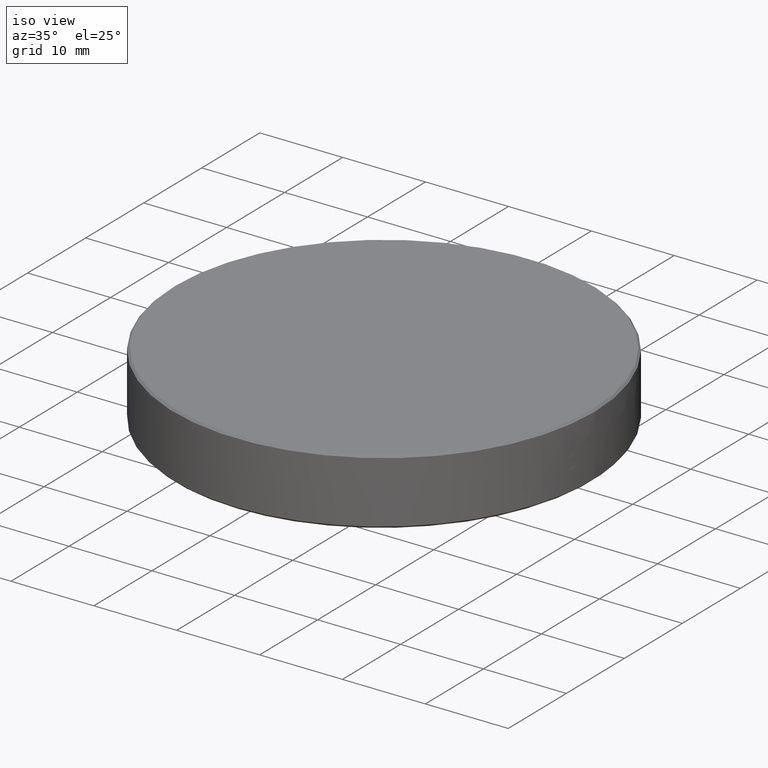
[diagram: clean part render]
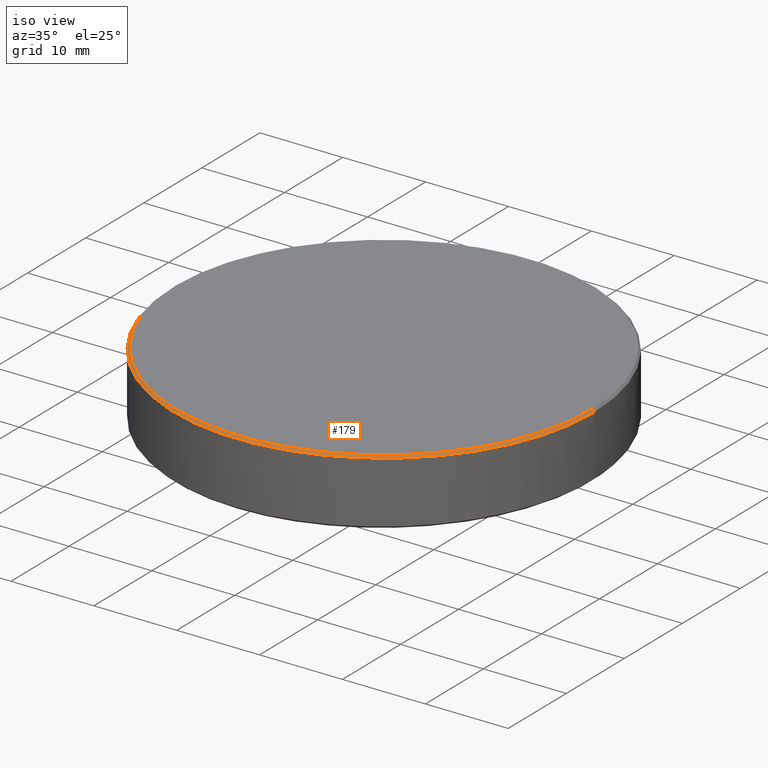
[diagram: same view with one face highlighted and labeled with its STEP entity id]
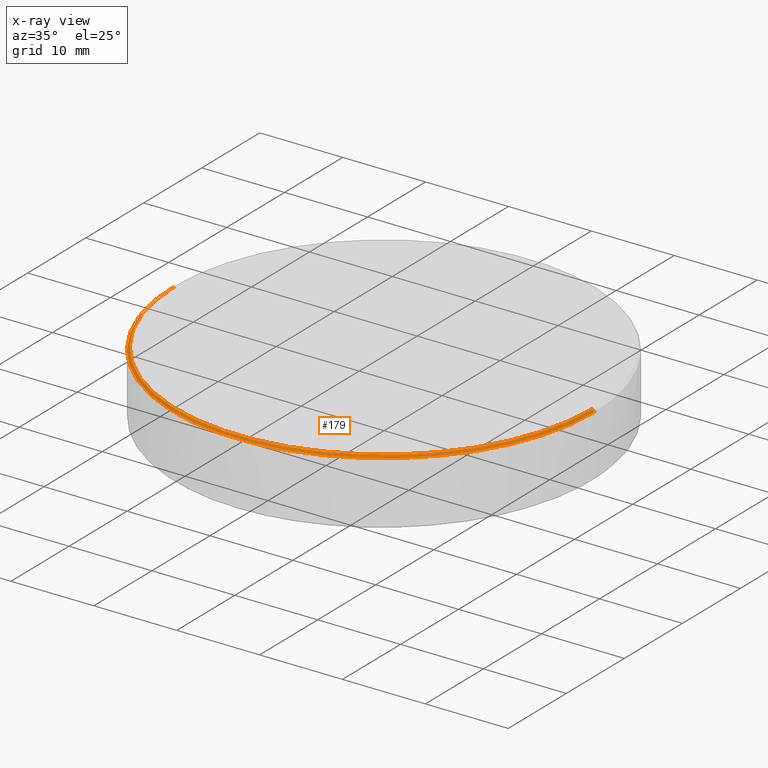
[diagram: x-ray of the same camera — body ghosted, the highlighted face saturated]
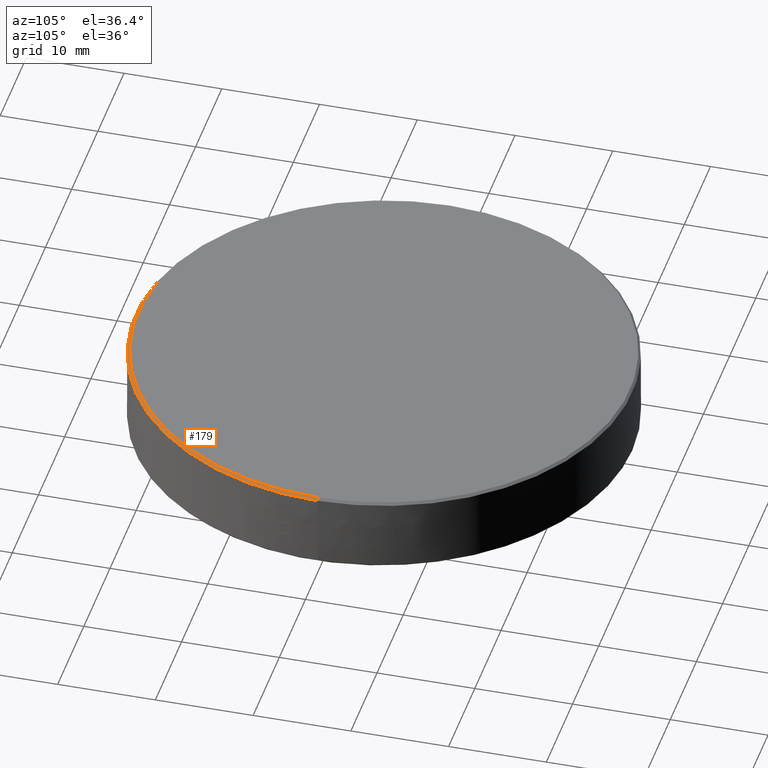
[diagram: same view with one face highlighted and labeled with its STEP entity id]
A machine part, iso view. The second image highlights one B-rep face of the part: STEP entity #179.
The next image is the same camera in x-ray: the body ghosted, the highlighted face saturated — about 0% of this face is hidden behind the body in this view.
A second angle (auxiliary view) of the same face is appended — the face is thin or edge-on in the first view.
In plain terms, the highlighted conical surface has half-angle 45 deg.
Its self-contained STEP definition (entity closure, byte-faithful):
#4 = DIRECTION ( 'NONE',  ( 1.000000000000000000, 0.0000000000000000000, 0.0000000000000000000 ) ) ;
#5 = DIRECTION ( 'NONE',  ( 0.0000000000000000000, 0.0000000000000000000, 1.000000000000000000 ) ) ;
#6 = CARTESIAN_POINT ( 'NONE',  ( 0.0000000000000000000, 0.0000000000000000000, 4.000000000000000000 ) ) ;
#7 = CIRCLE ( 'NONE', #118, 25.14999999999998800 ) ;
#12 = DIRECTION ( 'NONE',  ( -1.000000000000000000, 0.0000000000000000000, 0.0000000000000000000 ) ) ;
#33 = CARTESIAN_POINT ( 'NONE',  ( 0.0000000000000000000, 0.0000000000000000000, 4.000000000000000000 ) ) ;
#44 = DIRECTION ( 'NONE',  ( 0.0000000000000000000, 0.0000000000000000000, -1.000000000000000000 ) ) ;
#45 = FACE_OUTER_BOUND ( 'NONE', #171, .T. ) ;
#118 = AXIS2_PLACEMENT_3D ( 'NONE', #6, #5, #4 ) ;
#119 = AXIS2_PLACEMENT_3D ( 'NONE', #33, #44, #12 ) ;
#126 = CONICAL_SURFACE ( 'NONE', #119, 25.14999999999998800, 0.7853981633974482800 ) ;
#170 = ORIENTED_EDGE ( 'NONE', *, *, #2420, .T. ) ;
#171 = EDGE_LOOP ( 'NONE', ( #184, #177, #170, #175 ) ) ;
#175 = ORIENTED_EDGE ( 'NONE', *, *, #2294, .F. ) ;
#177 = ORIENTED_EDGE ( 'NONE', *, *, #182, .F. ) ;
#179 = ADVANCED_FACE ( 'NONE', ( #45 ), #126, .T. ) ;
#182 = EDGE_CURVE ( 'NONE', #2462, #2476, #7, .T. ) ;
#184 = ORIENTED_EDGE ( 'NONE', *, *, #2436, .F. ) ;
#731 = DIRECTION ( 'NONE',  ( 1.000000000000000000, 0.0000000000000000000, 0.0000000000000000000 ) ) ;
#732 = DIRECTION ( 'NONE',  ( 0.0000000000000000000, 0.0000000000000000000, -1.000000000000000000 ) ) ;
#733 = CARTESIAN_POINT ( 'NONE',  ( 0.0000000000000000000, 0.0000000000000000000, 3.749999999999989300 ) ) ;
#734 = AXIS2_PLACEMENT_3D ( 'NONE', #733, #732, #731 ) ;
#735 = CIRCLE ( 'NONE', #734, 25.39999999999999900 ) ;
#795 = DIRECTION ( 'NONE',  ( 0.7071067811865474600, 8.659560562354932900E-017, -0.7071067811865474600 ) ) ;
#796 = VECTOR ( 'NONE', #795, 1000.000000000000100 ) ;
#797 = CARTESIAN_POINT ( 'NONE',  ( 25.14999999999998800, 3.079986699855591900E-015, 4.000000000000000000 ) ) ;
#798 = LINE ( 'NONE', #797, #796 ) ;
#903 = CARTESIAN_POINT ( 'NONE',  ( -25.39999999999999900, 0.0000000000000000000, 3.749999999999989300 ) ) ;
#928 = DIRECTION ( 'NONE',  ( -0.7071067811865474600, 0.0000000000000000000, -0.7071067811865474600 ) ) ;
#929 = VECTOR ( 'NONE', #928, 1000.000000000000100 ) ;
#930 = CARTESIAN_POINT ( 'NONE',  ( -25.14999999999998800, 0.0000000000000000000, 4.000000000000000000 ) ) ;
#931 = LINE ( 'NONE', #930, #929 ) ;
#993 = CARTESIAN_POINT ( 'NONE',  ( 25.39999999999999900, 3.110602869834276900E-015, 3.749999999999989300 ) ) ;
#1024 = CARTESIAN_POINT ( 'NONE',  ( 25.14999999999998800, 3.095294784844934600E-015, 4.000000000000000000 ) ) ;
#1055 = CARTESIAN_POINT ( 'NONE',  ( -25.14999999999998800, 0.0000000000000000000, 4.000000000000000000 ) ) ;
#2294 = EDGE_CURVE ( 'NONE', #2474, #2435, #735, .T. ) ;
#2420 = EDGE_CURVE ( 'NONE', #2462, #2435, #931, .T. ) ;
#2435 = VERTEX_POINT ( 'NONE', #903 ) ;
#2436 = EDGE_CURVE ( 'NONE', #2476, #2474, #798, .T. ) ;
#2462 = VERTEX_POINT ( 'NONE', #1055 ) ;
#2474 = VERTEX_POINT ( 'NONE', #993 ) ;
#2476 = VERTEX_POINT ( 'NONE', #1024 ) ;